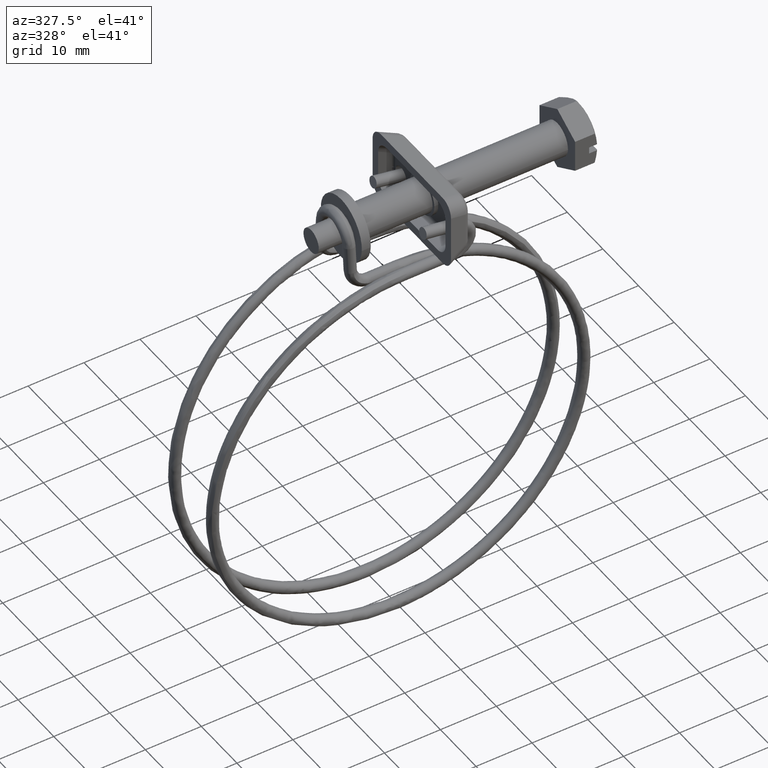
[diagram: clean part render]
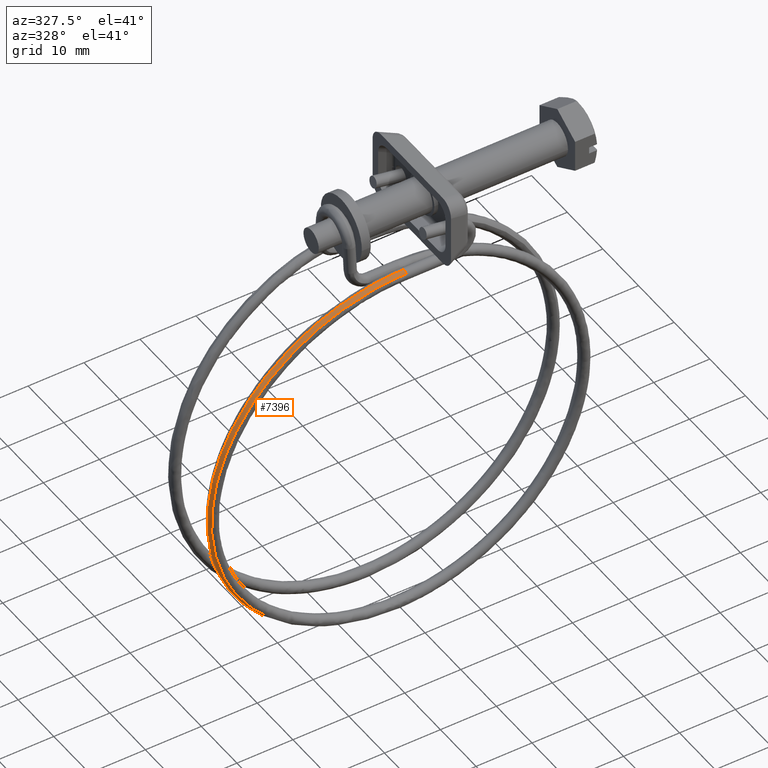
[diagram: same view with one face highlighted and labeled with its STEP entity id]
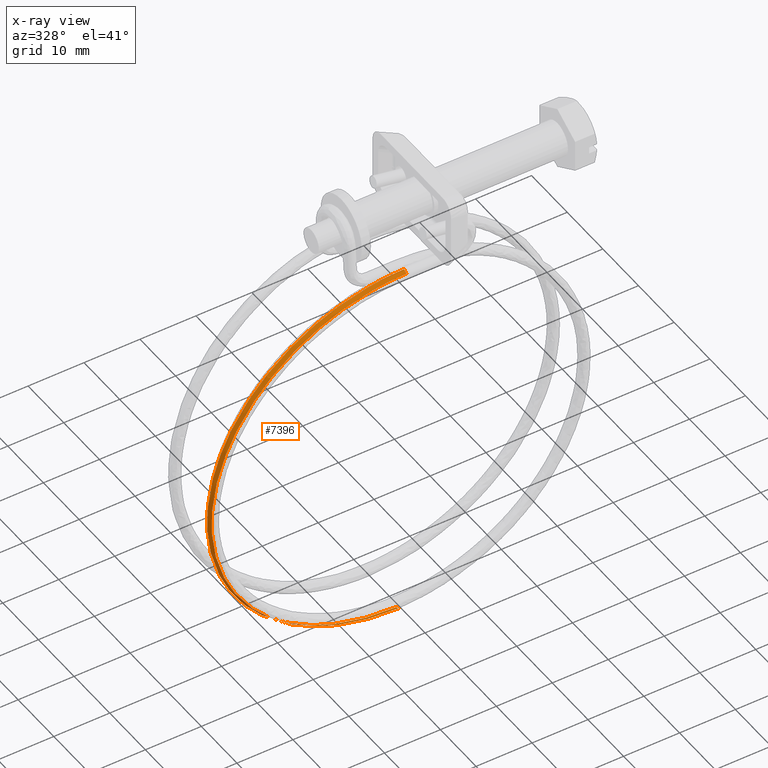
[diagram: x-ray of the same camera — body ghosted, the highlighted face saturated]
A machine part, auxiliary view. The second image highlights one B-rep face of the part: STEP entity #7396.
The next image is the same camera in x-ray: the body ghosted, the highlighted face saturated — about 0% of this face is hidden behind the body in this view.
In plain terms, the highlighted face is a freeform B-spline surface patch.
Its self-contained STEP definition (entity closure, byte-faithful):
#4599=CARTESIAN_POINT('',(-31.499999999998799,-6.369948017666440,-6.851799381403104));
#4600=VERTEX_POINT('',#4599);
#4608=CARTESIAN_POINT('',(-31.499999999998799,-7.078674786449659,-7.210393451102942));
#4609=VERTEX_POINT('',#4608);
#4610=CARTESIAN_POINT('',(-31.499999999998799,-6.369948017666440,-6.851799381403104));
#4611=CARTESIAN_POINT('',(-31.499999999998799,-6.631276590315241,-6.867493219982300));
#4612=CARTESIAN_POINT('',(-31.499999999998799,-6.884535374156941,-6.990669697786760));
#4613=CARTESIAN_POINT('',(-31.499999999998799,-7.065173297689192,-7.194389881439395));
#4614=CARTESIAN_POINT('',(-31.499999999998799,-7.071990489699211,-7.202338123314719));
#4615=CARTESIAN_POINT('',(-31.499999999998799,-7.078674786449659,-7.210393451102942));
#4616=B_SPLINE_CURVE_WITH_KNOTS('',3,(#4610,#4611,#4612,#4613,#4614,#4615),.UNSPECIFIED.,.F.,.U.,(4,2,4),(0.0,0.125000000000000,0.130000243199440),.UNSPECIFIED.);
#4617=EDGE_CURVE('',#4600,#4609,#4616,.T.);
#6125=CARTESIAN_POINT('',(-31.500000000001240,-5.028950504936020,-75.534537187868466));
#6126=VERTEX_POINT('',#6125);
#6138=CARTESIAN_POINT('',(-31.500000000001240,-4.300002000000005,-75.850001000000105));
#6139=VERTEX_POINT('',#6138);
#6140=CARTESIAN_POINT('',(-31.500000000001290,-4.300001999999999,-75.850001000000105));
#6141=CARTESIAN_POINT('',(-31.500000000001279,-4.561801387799146,-75.850001000000105));
#6142=CARTESIAN_POINT('',(-31.500000000001279,-4.821988658763279,-75.742227903609930));
#6143=CARTESIAN_POINT('',(-31.500000000001268,-5.014513946252123,-75.549702616121067));
#6144=CARTESIAN_POINT('',(-31.500000000001268,-5.021795344036881,-75.542177331933516));
#6145=CARTESIAN_POINT('',(-31.500000000001240,-5.028950504936020,-75.534537187868466));
#6146=B_SPLINE_CURVE_WITH_KNOTS('',3,(#6140,#6141,#6142,#6143,#6144,#6145),.UNSPECIFIED.,.F.,.U.,(4,2,4),(0.0,0.125000000000000,0.130000243199282),.UNSPECIFIED.);
#6147=EDGE_CURVE('',#6139,#6126,#6146,.T.);
#7285=CARTESIAN_POINT('',(-31.500000000001240,-5.028950504936020,-75.534537187868466));
#7286=CARTESIAN_POINT('',(-35.973005278150708,-5.028950991142065,-75.534537766680529));
#7287=CARTESIAN_POINT('',(-40.442629881534202,-5.055629407646570,-74.645223573354514));
#7288=CARTESIAN_POINT('',(-48.705730897024360,-5.158316594039483,-71.222317309228771));
#7289=CARTESIAN_POINT('',(-52.495228591292758,-5.234283829823305,-68.690076078539263));
#7290=CARTESIAN_POINT('',(-58.819111408490024,-5.424010065724406,-62.365868120919991));
#7291=CARTESIAN_POINT('',(-61.351014895135570,-5.537694415938508,-58.576389723833991));
#7292=CARTESIAN_POINT('',(-64.773315190695016,-5.785570590155861,-50.313850459905183));
#7293=CARTESIAN_POINT('',(-65.662370306550471,-5.919665025846638,-45.844035870208678));
#7294=CARTESIAN_POINT('',(-65.662370306550471,-6.187959255792742,-36.900894738467748));
#7295=CARTESIAN_POINT('',(-64.773315190741641,-6.322053691478854,-32.431080148795253));
#7296=CARTESIAN_POINT('',(-61.351014895087360,-6.569929865705523,-24.168540884819169));
#7297=CARTESIAN_POINT('',(-58.819111408464728,-6.683614215925315,-20.379062487773929));
#7298=CARTESIAN_POINT('',(-52.495228591314842,-6.873340451805699,-14.054854530120700));
#7299=CARTESIAN_POINT('',(-48.705730897074993,-6.949307687599625,-11.522613299408290));
#7300=CARTESIAN_POINT('',(-40.442629881480073,-7.051994873992993,-8.099707035364165));
#7301=CARTESIAN_POINT('',(-35.973005246349850,-7.078816237741194,-7.210426571126686));
#7302=CARTESIAN_POINT('',(-31.499999999998799,-7.078674786449659,-7.210393451102942));
#7303=B_SPLINE_CURVE_WITH_KNOTS('',3,(#7285,#7286,#7287,#7288,#7289,#7290,#7291,#7292,#7293,#7294,#7295,#7296,#7297,#7298,#7299,#7300,#7301,#7302),.UNSPECIFIED.,.F.,.U.,(4,2,2,2,2,2,2,2,4),(0.746180826173556,0.772054199897732,0.797927573621908,0.823800947346084,0.849674321070260,0.875547694794436,0.901421068518612,0.927294442242788,0.953167815966964),.UNSPECIFIED.);
#7304=EDGE_CURVE('',#6126,#4609,#7303,.T.);
#7310=CARTESIAN_POINT('',(-31.500000000001201,-4.300002000000009,-75.850001000000091));
#7311=CARTESIAN_POINT('',(-36.017173173384819,-4.300003018468487,-75.850001000014501));
#7312=CARTESIAN_POINT('',(-40.530931463473948,-4.326944887443970,-74.951904738566441));
#7313=CARTESIAN_POINT('',(-48.875608820631797,-4.430645839128323,-71.495206297507551));
#7314=CARTESIAN_POINT('',(-52.702509362391602,-4.507362953398618,-68.937969116973306));
#7315=CARTESIAN_POINT('',(-59.088794646966150,-4.698961359543209,-62.551355483532213));
#7316=CARTESIAN_POINT('',(-61.645673878974399,-4.813767246579165,-58.724492525178157));
#7317=CARTESIAN_POINT('',(-65.101728771354004,-5.064088256025655,-50.380458752465252));
#7318=CARTESIAN_POINT('',(-65.999550303535855,-5.199505039526505,-45.866565901828707));
#7319=CARTESIAN_POINT('',(-65.999550303535855,-5.470444978143271,-36.835234479572321));
#7320=CARTESIAN_POINT('',(-65.101728771398953,-5.605861761639356,-32.321341628958997));
#7321=CARTESIAN_POINT('',(-61.645673878928051,-5.856182771095356,-23.977307856200479));
#7322=CARTESIAN_POINT('',(-59.088794646934112,-5.970988658133210,-20.150444897869448));
#7323=CARTESIAN_POINT('',(-52.702509362420393,-6.162587064264490,-13.763831264428299));
#7324=CARTESIAN_POINT('',(-48.875608820683297,-6.239304178539506,-11.206594083803710));
#7325=CARTESIAN_POINT('',(-40.530931463418973,-6.343005130227664,-7.749895642927390));
#7326=CARTESIAN_POINT('',(-36.017173141158302,-6.370090638220630,-6.851833587324340));
#7327=CARTESIAN_POINT('',(-31.499999999998799,-6.369948017666440,-6.851799381403104));
#7328=B_SPLINE_CURVE_WITH_KNOTS('',3,(#7310,#7311,#7312,#7313,#7314,#7315,#7316,#7317,#7318,#7319,#7320,#7321,#7322,#7323,#7324,#7325,#7326,#7327),.UNSPECIFIED.,.F.,.U.,(4,2,2,2,2,2,2,2,4),(0.746180826173556,0.772054199897732,0.797927573621908,0.823800947346084,0.849674321070260,0.875547694794436,0.901421068518612,0.927294442242788,0.953167815966964),.UNSPECIFIED.);
#7329=EDGE_CURVE('',#6139,#4600,#7328,.T.);
#7337=CARTESIAN_POINT('',(-30.957937306245029,-4.295917803604594,-75.850001000012753));
#7338=CARTESIAN_POINT('',(-30.958048566417201,-4.570927530024357,-75.851170056850151));
#7339=CARTESIAN_POINT('',(-30.960030117440489,-4.844580280093956,-75.733262395844164));
#7340=CARTESIAN_POINT('',(-30.963287520392321,-5.031740971891241,-75.531557458299474));
#7341=CARTESIAN_POINT('',(-31.138622248190359,-4.295938534991434,-75.849311259589754));
#7342=CARTESIAN_POINT('',(-31.138696422189970,-4.570948257151041,-75.850480458320618));
#7343=CARTESIAN_POINT('',(-31.140017466027778,-4.844600931425747,-75.732575319223571));
#7344=CARTESIAN_POINT('',(-31.142189084142210,-5.031761498630931,-75.530874527063006));
#7345=CARTESIAN_POINT('',(-35.836237115086192,-4.294840300675235,-75.885952655002939));
#7346=CARTESIAN_POINT('',(-35.835347089345333,-4.569850248195305,-75.887114338841343));
#7347=CARTESIAN_POINT('',(-35.819495672092039,-4.843506938182950,-75.769075224647466));
#7348=CARTESIAN_POINT('',(-35.793438077428640,-5.030674106795479,-75.567154187903299));
#7349=CARTESIAN_POINT('',(-45.046728256658277,-4.349811185655481,-74.053547308821621));
#7350=CARTESIAN_POINT('',(-45.043947769776622,-4.624809849191069,-74.055085129150612));
#7351=CARTESIAN_POINT('',(-44.994427114753407,-4.898265568086631,-73.943745200694565));
#7352=CARTESIAN_POINT('',(-44.913021828751681,-5.085102367151149,-73.752836732443313));
#7353=CARTESIAN_POINT('',(-56.530926631968363,-4.580032981693377,-66.379501330359403));
#7354=CARTESIAN_POINT('',(-56.525789968726023,-4.854984406259829,-66.382613781781785));
#7355=CARTESIAN_POINT('',(-56.434305657361413,-5.127598796863989,-66.299318080949746));
#7356=CARTESIAN_POINT('',(-56.283917773140153,-5.313052565598341,-66.154510541981182));
#7357=CARTESIAN_POINT('',(-64.203838577624069,-4.924534907362567,-54.896101302686183));
#7358=CARTESIAN_POINT('',(-64.197128607461238,-5.199415685104385,-54.901568648490418));
#7359=CARTESIAN_POINT('',(-64.077623596223233,-5.470771850962183,-54.860213781388467));
#7360=CARTESIAN_POINT('',(-63.881173456000909,-5.654157267696705,-54.784351323835722));
#7361=CARTESIAN_POINT('',(-66.897566112244149,-5.330894735160382,-41.350773507245272));
#7362=CARTESIAN_POINT('',(-66.890304027227600,-5.605692215524026,-41.359017432386644));
#7363=CARTESIAN_POINT('',(-66.760965813764145,-5.875564849567468,-41.367113626467173));
#7364=CARTESIAN_POINT('',(-66.548351213711072,-6.056511539844412,-41.372542052044111));
#7365=CARTESIAN_POINT('',(-64.203847375742242,-5.737254947384689,-27.805432897582449));
#7366=CARTESIAN_POINT('',(-64.197137404074155,-6.011969130292333,-27.816453404611821));
#7367=CARTESIAN_POINT('',(-64.077632365865810,-6.280358231160505,-27.874000705374399));
#7368=CARTESIAN_POINT('',(-63.881182181306073,-6.458866192735177,-27.960720088901081));
#7369=CARTESIAN_POINT('',(-56.530924930614638,-6.081765983856043,-16.322060703195799));
#7370=CARTESIAN_POINT('',(-56.525788267660758,-6.356409519092351,-16.335436099363228));
#7371=CARTESIAN_POINT('',(-56.434303961515830,-6.623540380229272,-16.434924131103148));
#7372=CARTESIAN_POINT('',(-56.283916085878957,-6.799979964952115,-16.590588426636689));
#7373=CARTESIAN_POINT('',(-45.046728845112227,-6.311928694168810,-8.647995088568782));
#7374=CARTESIAN_POINT('',(-45.043948358127253,-6.586524996400735,-8.662945117917980));
#7375=CARTESIAN_POINT('',(-44.994427701279491,-6.852814634831833,-8.790477470555571));
#7376=CARTESIAN_POINT('',(-44.913022412276142,-7.027871364147746,-8.992242851548358));
#7377=CARTESIAN_POINT('',(-35.836236969479167,-6.367079289305221,-6.815634234229638));
#7378=CARTESIAN_POINT('',(-35.835346943762843,-6.641664289371288,-6.830960396745661));
#7379=CARTESIAN_POINT('',(-35.819495527010943,-6.907752634767006,-6.965191705691014));
#7380=CARTESIAN_POINT('',(-35.793437933175433,-7.082478461200384,-7.177969269414885));
#7381=CARTESIAN_POINT('',(-31.138622250815310,-6.365838967269370,-6.852241508688052));
#7382=CARTESIAN_POINT('',(-31.138696424814249,-6.640424207072639,-6.867560158728994));
#7383=CARTESIAN_POINT('',(-31.140017468639080,-6.906516822783160,-7.001657670212605));
#7384=CARTESIAN_POINT('',(-31.142189086732120,-7.081249672394744,-7.214215288163496));
#7385=CARTESIAN_POINT('',(-30.957937310109479,-6.365854173715316,-6.851550452565559));
#7386=CARTESIAN_POINT('',(-30.958048570280699,-6.640439409817446,-6.866869244591748));
#7387=CARTESIAN_POINT('',(-30.960030121284841,-6.906531959633590,-7.000969284852100));
#7388=CARTESIAN_POINT('',(-30.963287524205199,-7.081264701054193,-7.213531059740516));
#7389=B_SPLINE_SURFACE_WITH_KNOTS('',3,3,((#7337,#7341,#7345,#7349,#7353,#7357,#7361,#7365,#7369,#7373,#7377,#7381,#7385),(#7338,#7342,#7346,#7350,#7354,#7358,#7362,#7366,#7370,#7374,#7378,#7382,#7386),(#7339,#7343,#7347,#7351,#7355,#7359,#7363,#7367,#7371,#7375,#7379,#7383,#7387),(#7340,#7344,#7348,#7352,#7356,#7360,#7364,#7368,#7372,#7376,#7380,#7384,#7388)),.UNSPECIFIED.,.F.,.F.,.U.,(4,4),(4,1,1,1,1,1,1,1,1,1,4),(0.0,0.825543365109751),(0.0,0.542058788591201,14.093528806270839,27.644998823950370,41.196468841630008,54.747938859309592,68.299408876989162,81.850878894668796,95.402348912348387,108.953818930028010,109.495877718619200),.UNSPECIFIED.);
#7390=ORIENTED_EDGE('',*,*,#4617,.F.);
#7391=ORIENTED_EDGE('',*,*,#7329,.F.);
#7392=ORIENTED_EDGE('',*,*,#6147,.T.);
#7393=ORIENTED_EDGE('',*,*,#7304,.T.);
#7394=EDGE_LOOP('',(#7390,#7391,#7392,#7393));
#7395=FACE_OUTER_BOUND('',#7394,.T.);
#7396=ADVANCED_FACE('',(#7395),#7389,.T.);